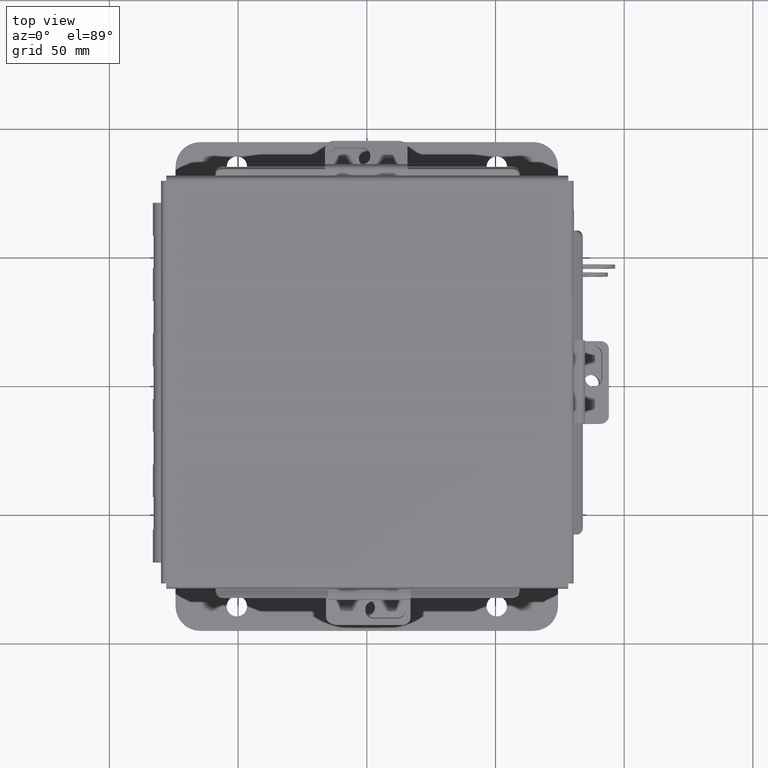
[diagram: clean part render]
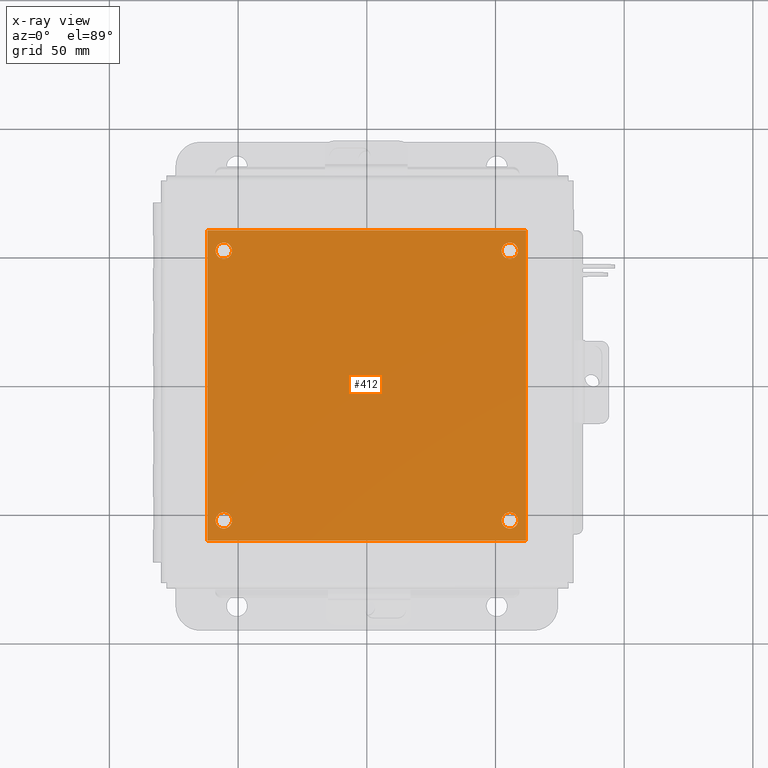
[diagram: x-ray — body ghosted, one internal face saturated and labeled with its STEP entity id]
A machine part, top view, then the same camera in x-ray: the body is ghosted and one INTERNAL B-rep face — a face not visible from any outside direction — is saturated and labeled: STEP entity #412.
In plain terms, the highlighted planar face has unit normal (0, 0, -1).
Its self-contained STEP definition (entity closure, byte-faithful):
#199 = VERTEX_POINT ( 'NONE', #546 ) ;
#251 = CARTESIAN_POINT ( 'NONE',  ( 0.0000000000000000000, 0.0000000000000000000, -0.07470000000000003000 ) ) ;
#381 = ORIENTED_EDGE ( 'NONE', *, *, #3493, .T. ) ;
#412 = ADVANCED_FACE ( 'NONE', ( #2476, #8997, #13790, #10873, #5380 ), #10714, .T. ) ;
#445 = ORIENTED_EDGE ( 'NONE', *, *, #13531, .T. ) ;
#492 = ORIENTED_EDGE ( 'NONE', *, *, #13461, .F. ) ;
#546 = CARTESIAN_POINT ( 'NONE',  ( 4.875000000000000000, 0.0000000000000000000, -0.07470000000000003000 ) ) ;
#646 = ORIENTED_EDGE ( 'NONE', *, *, #5982, .T. ) ;
#679 = AXIS2_PLACEMENT_3D ( 'NONE', #10580, #4004, #11698 ) ;
#754 = EDGE_CURVE ( 'NONE', #6375, #6465, #9643, .T. ) ;
#851 = VERTEX_POINT ( 'NONE', #1984 ) ;
#963 = CARTESIAN_POINT ( 'NONE',  ( 0.3750000000000020000, 0.3120000000000015000, -0.07470000000000003000 ) ) ;
#1114 = EDGE_CURVE ( 'NONE', #12969, #1811, #4827, .T. ) ;
#1146 = CARTESIAN_POINT ( 'NONE',  ( 0.2500000000000000600, 4.437999999999998800, -0.07470000000000003000 ) ) ;
#1148 = AXIS2_PLACEMENT_3D ( 'NONE', #1413, #9095, #2527 ) ;
#1207 = ORIENTED_EDGE ( 'NONE', *, *, #754, .F. ) ;
#1221 = CIRCLE ( 'NONE', #679, 0.1250000000000000600 ) ;
#1357 = DIRECTION ( 'NONE',  ( 1.000000000000000000, 0.0000000000000000000, 0.0000000000000000000 ) ) ;
#1413 = CARTESIAN_POINT ( 'NONE',  ( 4.625000000000000000, 4.437999999999998800, -0.07470000000000003000 ) ) ;
#1595 = CARTESIAN_POINT ( 'NONE',  ( 4.625000000000000000, 4.437999999999998800, -0.07470000000000003000 ) ) ;
#1811 = VERTEX_POINT ( 'NONE', #5106 ) ;
#1960 = EDGE_CURVE ( 'NONE', #4635, #851, #13726, .T. ) ;
#1984 = CARTESIAN_POINT ( 'NONE',  ( 0.3750000000000001100, 4.437999999999998800, -0.07470000000000003000 ) ) ;
#2275 = DIRECTION ( 'NONE',  ( -1.000000000000000000, 0.0000000000000000000, 0.0000000000000000000 ) ) ;
#2412 = CARTESIAN_POINT ( 'NONE',  ( 0.1250000000000019200, 0.3120000000000015000, -0.07470000000000003000 ) ) ;
#2476 = FACE_BOUND ( 'NONE', #7633, .T. ) ;
#2527 = DIRECTION ( 'NONE',  ( -1.000000000000000000, 0.0000000000000000000, 0.0000000000000000000 ) ) ;
#2699 = DIRECTION ( 'NONE',  ( -1.000000000000000000, 0.0000000000000000000, 0.0000000000000000000 ) ) ;
#2963 = EDGE_CURVE ( 'NONE', #6465, #11079, #4103, .T. ) ;
#3216 = EDGE_LOOP ( 'NONE', ( #7441, #7357 ) ) ;
#3270 = EDGE_LOOP ( 'NONE', ( #646, #381 ) ) ;
#3301 = CARTESIAN_POINT ( 'NONE',  ( 0.1250000000000000600, 4.437999999999998800, -0.07470000000000003000 ) ) ;
#3453 = VECTOR ( 'NONE', #11613, 39.37007874015748100 ) ;
#3493 = EDGE_CURVE ( 'NONE', #10836, #9275, #11826, .T. ) ;
#3584 = ORIENTED_EDGE ( 'NONE', *, *, #4296, .T. ) ;
#3735 = CARTESIAN_POINT ( 'NONE',  ( 4.875000000000000000, 4.749999999999999100, -0.07470000000000003000 ) ) ;
#3773 = CIRCLE ( 'NONE', #4669, 0.1249999999999999000 ) ;
#3788 = VECTOR ( 'NONE', #12499, 39.37007874015748100 ) ;
#3951 = CARTESIAN_POINT ( 'NONE',  ( 4.500000000000000900, 0.3120000000000009400, -0.07470000000000003000 ) ) ;
#4004 = DIRECTION ( 'NONE',  ( -0.0000000000000000000, -0.0000000000000000000, 1.000000000000000000 ) ) ;
#4030 = CARTESIAN_POINT ( 'NONE',  ( 4.625000000000000900, 0.3120000000000009400, -0.07470000000000003000 ) ) ;
#4103 = LINE ( 'NONE', #12375, #6690 ) ;
#4140 = DIRECTION ( 'NONE',  ( 0.0000000000000000000, 0.0000000000000000000, -1.000000000000000000 ) ) ;
#4150 = EDGE_CURVE ( 'NONE', #851, #4635, #8192, .T. ) ;
#4296 = EDGE_CURVE ( 'NONE', #1811, #12969, #3773, .T. ) ;
#4384 = ORIENTED_EDGE ( 'NONE', *, *, #12279, .F. ) ;
#4595 = ORIENTED_EDGE ( 'NONE', *, *, #1114, .T. ) ;
#4635 = VERTEX_POINT ( 'NONE', #3301 ) ;
#4669 = AXIS2_PLACEMENT_3D ( 'NONE', #1595, #9281, #2699 ) ;
#4827 = CIRCLE ( 'NONE', #1148, 0.1249999999999999000 ) ;
#4941 = AXIS2_PLACEMENT_3D ( 'NONE', #7419, #4140, #11824 ) ;
#5106 = CARTESIAN_POINT ( 'NONE',  ( 4.500000000000000000, 4.437999999999998800, -0.07470000000000003000 ) ) ;
#5136 = CARTESIAN_POINT ( 'NONE',  ( 0.2500000000000020000, 0.3120000000000015000, -0.07470000000000003000 ) ) ;
#5153 = DIRECTION ( 'NONE',  ( -1.000000000000000000, 0.0000000000000000000, 0.0000000000000000000 ) ) ;
#5157 = EDGE_LOOP ( 'NONE', ( #11766, #1207, #492, #4384 ) ) ;
#5351 = DIRECTION ( 'NONE',  ( -0.0000000000000000000, -0.0000000000000000000, 1.000000000000000000 ) ) ;
#5380 = FACE_OUTER_BOUND ( 'NONE', #5157, .T. ) ;
#5671 = AXIS2_PLACEMENT_3D ( 'NONE', #12621, #6046, #13720 ) ;
#5982 = EDGE_CURVE ( 'NONE', #9275, #10836, #12166, .T. ) ;
#6046 = DIRECTION ( 'NONE',  ( -0.0000000000000000000, -0.0000000000000000000, 1.000000000000000000 ) ) ;
#6238 = DIRECTION ( 'NONE',  ( -1.000000000000000000, 0.0000000000000000000, 0.0000000000000000000 ) ) ;
#6375 = VERTEX_POINT ( 'NONE', #3735 ) ;
#6465 = VERTEX_POINT ( 'NONE', #8350 ) ;
#6690 = VECTOR ( 'NONE', #7952, 39.37007874015748100 ) ;
#6861 = CARTESIAN_POINT ( 'NONE',  ( 0.0000000000000000000, 0.0000000000000000000, -0.07470000000000003000 ) ) ;
#7235 = CARTESIAN_POINT ( 'NONE',  ( 4.750000000000000900, 0.3120000000000009400, -0.07470000000000003000 ) ) ;
#7357 = ORIENTED_EDGE ( 'NONE', *, *, #1960, .T. ) ;
#7419 = CARTESIAN_POINT ( 'NONE',  ( 0.0000000000000000000, 0.0000000000000000000, -0.07470000000000003000 ) ) ;
#7441 = ORIENTED_EDGE ( 'NONE', *, *, #4150, .T. ) ;
#7614 = AXIS2_PLACEMENT_3D ( 'NONE', #5136, #12803, #6238 ) ;
#7633 = EDGE_LOOP ( 'NONE', ( #11196, #445 ) ) ;
#7952 = DIRECTION ( 'NONE',  ( -0.0000000000000000000, -1.000000000000000000, -0.0000000000000000000 ) ) ;
#8192 = CIRCLE ( 'NONE', #5671, 0.1250000000000000000 ) ;
#8350 = CARTESIAN_POINT ( 'NONE',  ( 0.0000000000000000000, 4.749999999999999100, -0.07470000000000003000 ) ) ;
#8832 = DIRECTION ( 'NONE',  ( -0.0000000000000000000, -0.0000000000000000000, 1.000000000000000000 ) ) ;
#8965 = CIRCLE ( 'NONE', #7614, 0.1250000000000000600 ) ;
#8997 = FACE_BOUND ( 'NONE', #3270, .T. ) ;
#9095 = DIRECTION ( 'NONE',  ( -0.0000000000000000000, -0.0000000000000000000, 1.000000000000000000 ) ) ;
#9275 = VERTEX_POINT ( 'NONE', #7235 ) ;
#9281 = DIRECTION ( 'NONE',  ( -0.0000000000000000000, -0.0000000000000000000, 1.000000000000000000 ) ) ;
#9482 = CARTESIAN_POINT ( 'NONE',  ( 0.0000000000000000000, 4.749999999999999100, -0.07470000000000003000 ) ) ;
#9530 = EDGE_LOOP ( 'NONE', ( #4595, #3584 ) ) ;
#9643 = LINE ( 'NONE', #9482, #3788 ) ;
#9901 = AXIS2_PLACEMENT_3D ( 'NONE', #4030, #11727, #5153 ) ;
#9985 = VERTEX_POINT ( 'NONE', #2412 ) ;
#10500 = CARTESIAN_POINT ( 'NONE',  ( 4.875000000000000000, 0.0000000000000000000, -0.07470000000000003000 ) ) ;
#10580 = CARTESIAN_POINT ( 'NONE',  ( 0.2500000000000020000, 0.3120000000000015000, -0.07470000000000003000 ) ) ;
#10714 = PLANE ( 'NONE',  #4941 ) ;
#10836 = VERTEX_POINT ( 'NONE', #3951 ) ;
#10873 = FACE_BOUND ( 'NONE', #3216, .T. ) ;
#11042 = VECTOR ( 'NONE', #1357, 39.37007874015748100 ) ;
#11079 = VERTEX_POINT ( 'NONE', #6861 ) ;
#11196 = ORIENTED_EDGE ( 'NONE', *, *, #11432, .T. ) ;
#11432 = EDGE_CURVE ( 'NONE', #12564, #9985, #1221, .T. ) ;
#11613 = DIRECTION ( 'NONE',  ( 0.0000000000000000000, 1.000000000000000000, 0.0000000000000000000 ) ) ;
#11698 = DIRECTION ( 'NONE',  ( -1.000000000000000000, 0.0000000000000000000, 0.0000000000000000000 ) ) ;
#11727 = DIRECTION ( 'NONE',  ( -0.0000000000000000000, -0.0000000000000000000, 1.000000000000000000 ) ) ;
#11741 = LINE ( 'NONE', #251, #11042 ) ;
#11766 = ORIENTED_EDGE ( 'NONE', *, *, #2963, .F. ) ;
#11824 = DIRECTION ( 'NONE',  ( -1.000000000000000000, 0.0000000000000000000, -0.0000000000000000000 ) ) ;
#11826 = CIRCLE ( 'NONE', #9901, 0.1249999999999999000 ) ;
#11917 = CARTESIAN_POINT ( 'NONE',  ( 4.625000000000000900, 0.3120000000000009400, -0.07470000000000003000 ) ) ;
#12131 = AXIS2_PLACEMENT_3D ( 'NONE', #11917, #5351, #13023 ) ;
#12166 = CIRCLE ( 'NONE', #12131, 0.1249999999999999000 ) ;
#12230 = LINE ( 'NONE', #10500, #3453 ) ;
#12279 = EDGE_CURVE ( 'NONE', #11079, #199, #11741, .T. ) ;
#12375 = CARTESIAN_POINT ( 'NONE',  ( 0.0000000000000000000, 0.0000000000000000000, -0.07470000000000003000 ) ) ;
#12499 = DIRECTION ( 'NONE',  ( -1.000000000000000000, -0.0000000000000000000, -0.0000000000000000000 ) ) ;
#12564 = VERTEX_POINT ( 'NONE', #963 ) ;
#12621 = CARTESIAN_POINT ( 'NONE',  ( 0.2500000000000000600, 4.437999999999998800, -0.07470000000000003000 ) ) ;
#12803 = DIRECTION ( 'NONE',  ( -0.0000000000000000000, -0.0000000000000000000, 1.000000000000000000 ) ) ;
#12807 = AXIS2_PLACEMENT_3D ( 'NONE', #1146, #8832, #2275 ) ;
#12969 = VERTEX_POINT ( 'NONE', #13730 ) ;
#13023 = DIRECTION ( 'NONE',  ( -1.000000000000000000, 0.0000000000000000000, 0.0000000000000000000 ) ) ;
#13461 = EDGE_CURVE ( 'NONE', #199, #6375, #12230, .T. ) ;
#13531 = EDGE_CURVE ( 'NONE', #9985, #12564, #8965, .T. ) ;
#13720 = DIRECTION ( 'NONE',  ( -1.000000000000000000, 0.0000000000000000000, 0.0000000000000000000 ) ) ;
#13726 = CIRCLE ( 'NONE', #12807, 0.1250000000000000000 ) ;
#13730 = CARTESIAN_POINT ( 'NONE',  ( 4.750000000000000000, 4.437999999999998800, -0.07470000000000003000 ) ) ;
#13790 = FACE_BOUND ( 'NONE', #9530, .T. ) ;